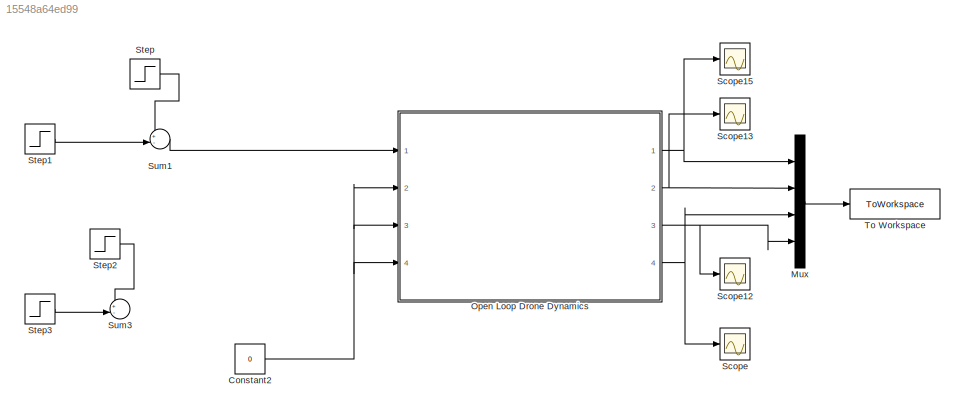
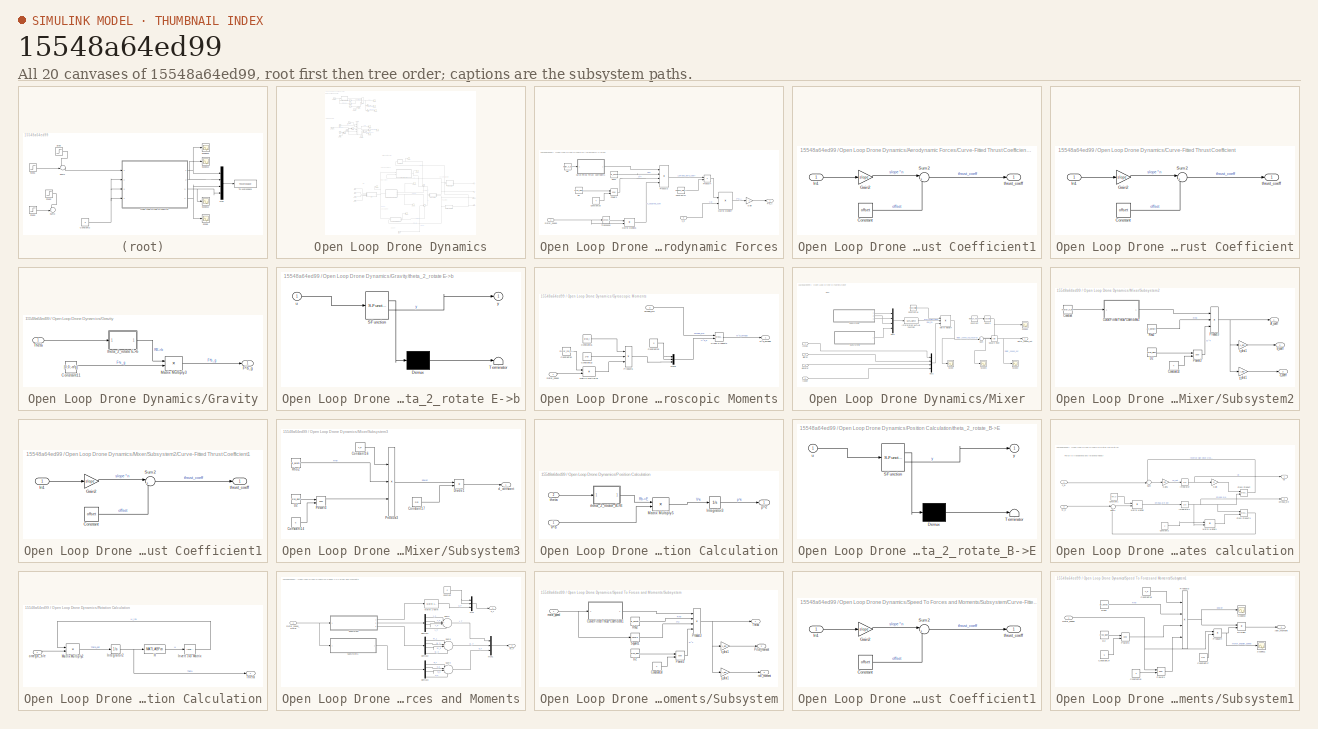
[diagram: thumbnail index - all 20 canvases of the model, root first then tree order]
MODEL slx_15548a64ed99
KIND model
CONFIG AbsTol = auto
CONFIG EnableMultiTasking = off
CONFIG FixedStep = auto
CONFIG MaxStep = auto
CONFIG MinStep = auto
CONFIG RelTol = 1e-3
CONFIG SampleTimeConstraint = Unconstrained
CONFIG SolverName = VariableStepAuto
CONFIG StartTime = 0.0
CONFIG StopTime = 10.0
BLOCK [Constant] Constant2
  Value = 0
BLOCK [Mux] Mux
  DisplayOption = bar
  Ports = [4, 1]
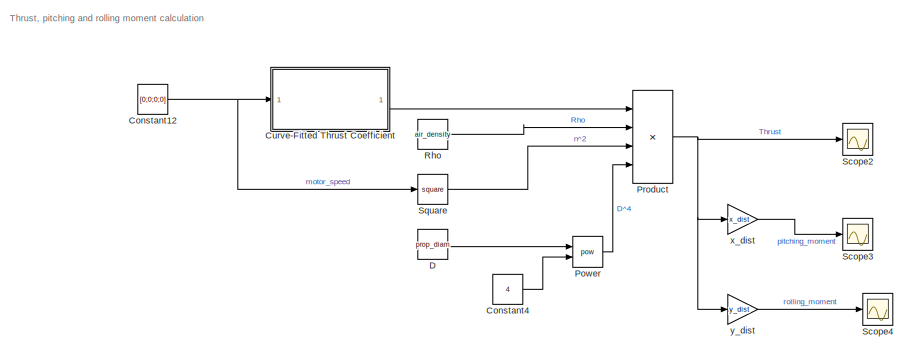
[diagram: Open Loop Drone Dynamics - part 1/6, top left region]
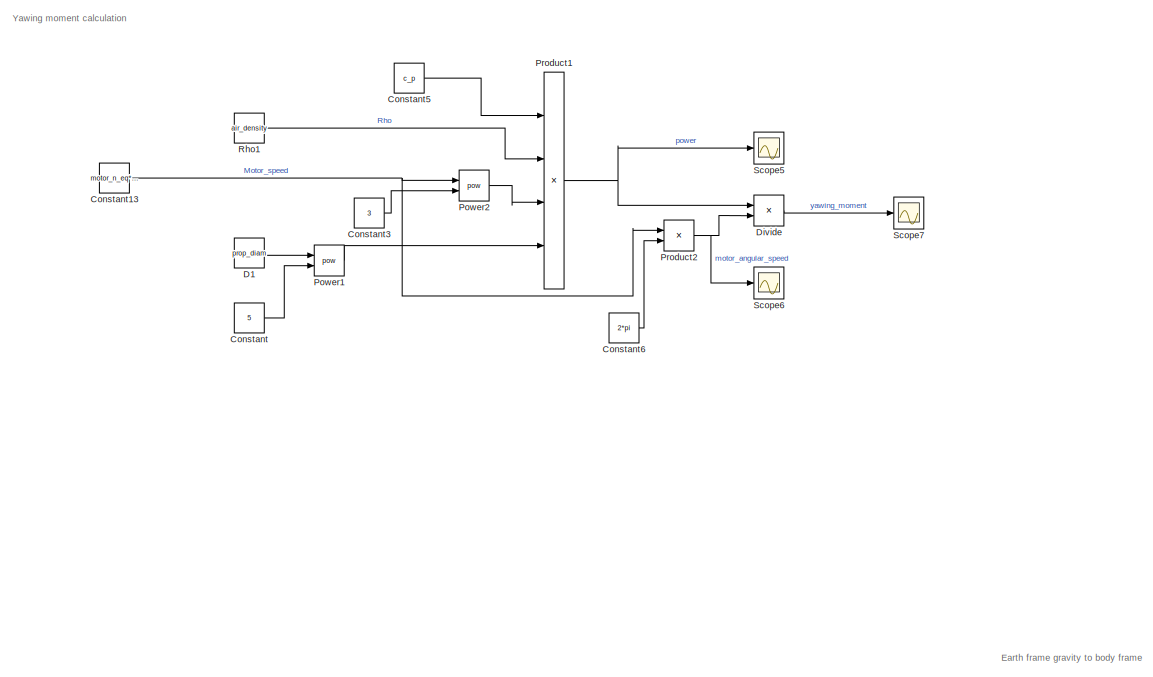
[diagram: Open Loop Drone Dynamics - part 2/6, top left region]
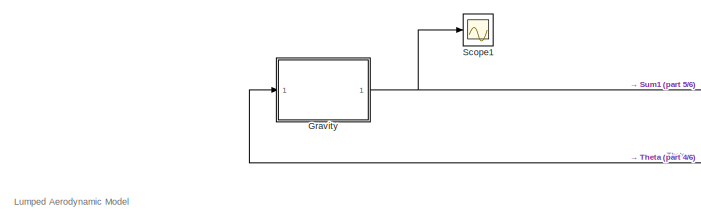
[diagram: Open Loop Drone Dynamics - part 3/6, central region]
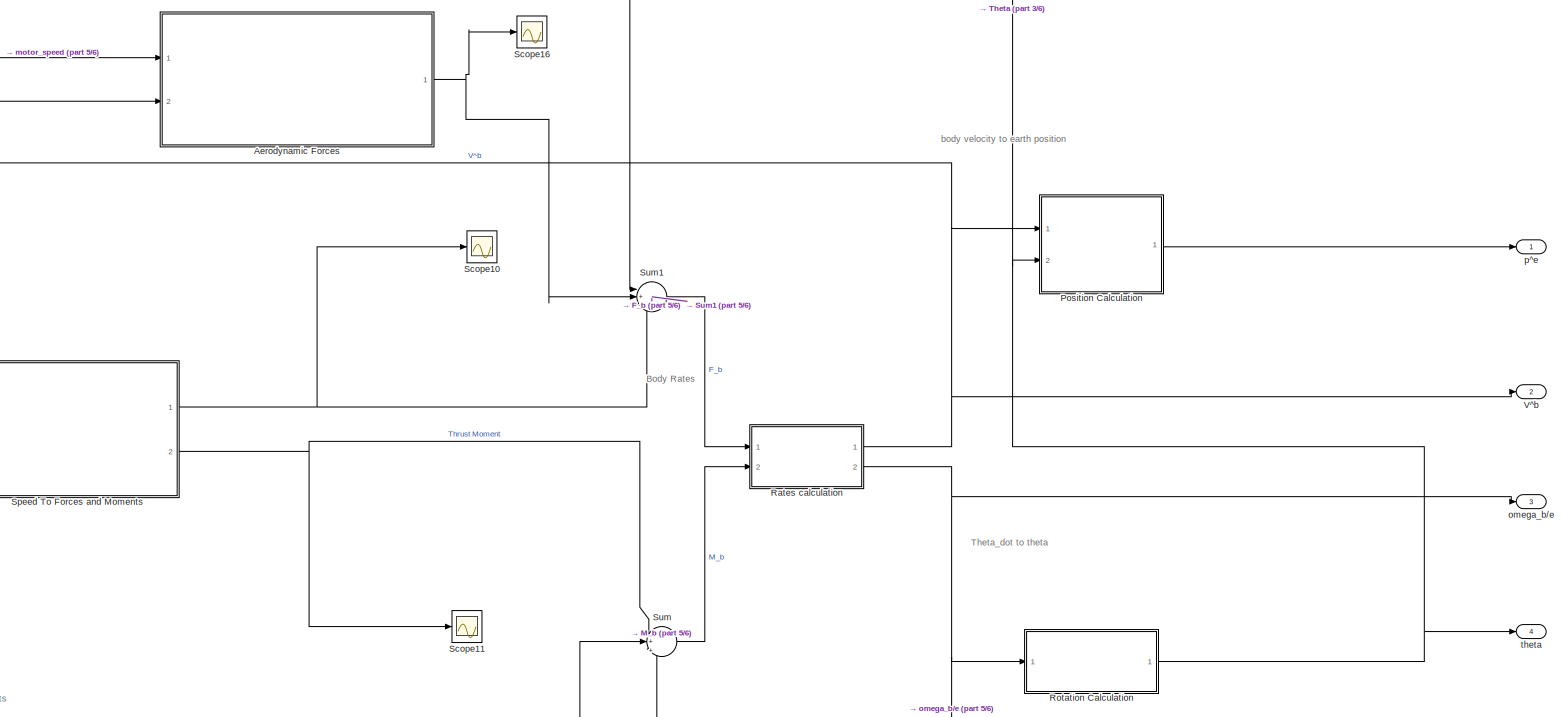
[diagram: Open Loop Drone Dynamics - part 4/6, bottom right region]
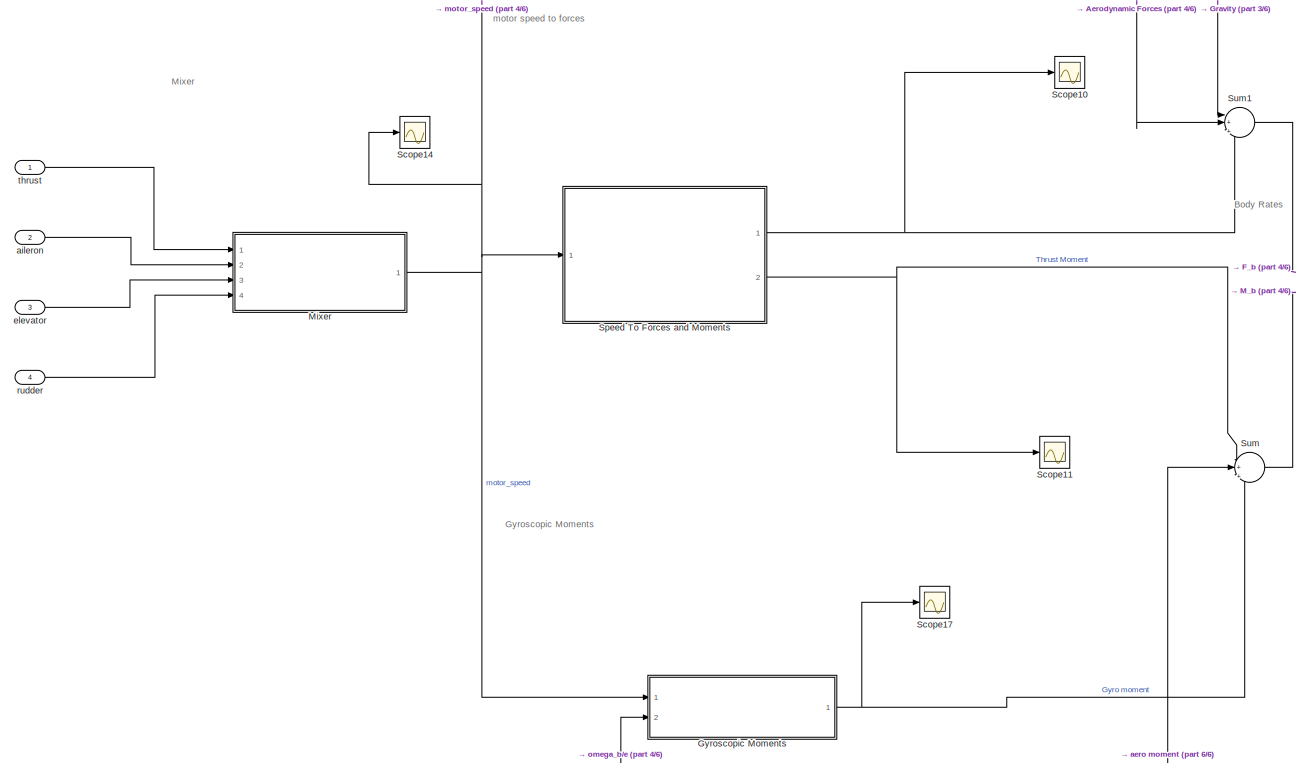
[diagram: Open Loop Drone Dynamics - part 5/6, bottom center region]
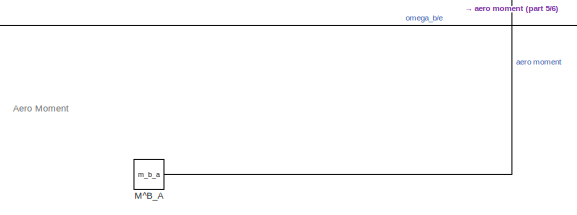
[diagram: Open Loop Drone Dynamics - part 6/6, bottom center region]
BLOCK [SubSystem] Open Loop Drone Dynamics
  Ports = [4, 4]
  RequestExecContextInheritance = off
BLOCK [SubSystem] Open Loop Drone Dynamics/Aerodynamic Forces
  Ports = [2, 1]
  RequestExecContextInheritance = off
BLOCK [Constant] Open Loop Drone Dynamics/Aerodynamic Forces/Constant26
  Value = 4
BLOCK [Constant] Open Loop Drone Dynamics/Aerodynamic Forces/Constant27
  Value = lumped_matrix
BLOCK [SubSystem] Open Loop Drone Dynamics/Aerodynamic Forces/Curve-Fitted Thrust Coefficient1
  Ports = [1, 1]
  RequestExecContextInheritance = off
BLOCK [Constant] Open Loop Drone Dynamics/Aerodynamic Forces/Curve-Fitted Thrust Coefficient1/Constant
  Value = offset
BLOCK [Gain] Open Loop Drone Dynamics/Aerodynamic Forces/Curve-Fitted Thrust Coefficient1/Gain2
  Gain = slope
BLOCK [Inport] Open Loop Drone Dynamics/Aerodynamic Forces/Curve-Fitted Thrust Coefficient1/In1
BLOCK [Sum] Open Loop Drone Dynamics/Aerodynamic Forces/Curve-Fitted Thrust Coefficient1/Sum2
  Inputs = |++
  Ports = [2, 1]
BLOCK [Outport] Open Loop Drone Dynamics/Aerodynamic Forces/Curve-Fitted Thrust Coefficient1/thrust_coeff
BLOCK [Constant] Open Loop Drone Dynamics/Aerodynamic Forces/D2
  Value = prop_diam
BLOCK [Constant] Open Loop Drone Dynamics/Aerodynamic Forces/D3
  Value = motor_n_eq
BLOCK [Outport] Open Loop Drone Dynamics/Aerodynamic Forces/F^b_A
BLOCK [Gain] Open Loop Drone Dynamics/Aerodynamic Forces/Gain
  Gain = -1
BLOCK [Product] Open Loop Drone Dynamics/Aerodynamic Forces/Matrix Multiply6
  Multiplication = Matrix(*)
  Ports = [2, 1]
BLOCK [Product] Open Loop Drone Dynamics/Aerodynamic Forces/Matrix Multiply7
  Multiplication = Matrix(*)
  Ports = [2, 1]
BLOCK [Math] Open Loop Drone Dynamics/Aerodynamic Forces/Power3
  Operator = pow
  Ports = [2, 1]
BLOCK [Product] Open Loop Drone Dynamics/Aerodynamic Forces/Product3
  Inputs = 4
  Ports = [4, 1]
BLOCK [Product] Open Loop Drone Dynamics/Aerodynamic Forces/Product4
  Ports = [2, 1]
BLOCK [Constant] Open Loop Drone Dynamics/Aerodynamic Forces/Rho2
  Value = air_density
BLOCK [Math] Open Loop Drone Dynamics/Aerodynamic Forces/Transpose
  Operator = transpose
  Ports = [1, 1]
BLOCK [Inport] Open Loop Drone Dynamics/Aerodynamic Forces/V_b
  Port = 2
BLOCK [Inport] Open Loop Drone Dynamics/Aerodynamic Forces/motor_speed
BLOCK [Constant] Open Loop Drone Dynamics/Constant
  Value = 5
BLOCK [Constant] Open Loop Drone Dynamics/Constant12
  Value = [0;0;0;0]
BLOCK [Constant] Open Loop Drone Dynamics/Constant13
  Value = motor_n_eq*ones(4,1)
BLOCK [Constant] Open Loop Drone Dynamics/Constant3
  Value = 3
BLOCK [Constant] Open Loop Drone Dynamics/Constant4
  Value = 4
BLOCK [Constant] Open Loop Drone Dynamics/Constant5
  Value = c_p
BLOCK [Constant] Open Loop Drone Dynamics/Constant6
  Value = 2*pi
BLOCK [SubSystem] Open Loop Drone Dynamics/Curve-Fitted Thrust Coefficient
  Ports = [1, 1]
  RequestExecContextInheritance = off
BLOCK [Constant] Open Loop Drone Dynamics/Curve-Fitted Thrust Coefficient/Constant
  Value = offset
BLOCK [Gain] Open Loop Drone Dynamics/Curve-Fitted Thrust Coefficient/Gain2
  Gain = slope
BLOCK [Inport] Open Loop Drone Dynamics/Curve-Fitted Thrust Coefficient/In1
BLOCK [Sum] Open Loop Drone Dynamics/Curve-Fitted Thrust Coefficient/Sum2
  Inputs = |++
  Ports = [2, 1]
BLOCK [Outport] Open Loop Drone Dynamics/Curve-Fitted Thrust Coefficient/thrust_coeff
BLOCK [Constant] Open Loop Drone Dynamics/D
  Value = prop_diam
BLOCK [Constant] Open Loop Drone Dynamics/D1
  Value = prop_diam
BLOCK [Product] Open Loop Drone Dynamics/Divide
  Inputs = */
  Ports = [2, 1]
BLOCK [SubSystem] Open Loop Drone Dynamics/Gravity
  Ports = [1, 1]
  RequestExecContextInheritance = off
BLOCK [Constant] Open Loop Drone Dynamics/Gravity/Constant11
  Value = [0;0;-m*g]
BLOCK [Outport] Open Loop Drone Dynamics/Gravity/F^b_g
BLOCK [Product] Open Loop Drone Dynamics/Gravity/Matrix Multiply3
  Multiplication = Matrix(*)
  Ports = [2, 1]
BLOCK [Inport] Open Loop Drone Dynamics/Gravity/Theta
BLOCK [SubSystem] Open Loop Drone Dynamics/Gravity/theta_2_rotate E->b
  ErrorFcn = Stateflow.Translate.translate
  PermitHierarchicalResolution = ExplicitOnly
  Ports = [1, 1]
  RequestExecContextInheritance = off
  SFBlockType = MATLAB Function
  TreatAsAtomicUnit = on
BLOCK [Demux] Open Loop Drone Dynamics/Gravity/theta_2_rotate E->b/ Demux 
  Outputs = 1
  Ports = [1, 1]
BLOCK [S-Function] Open Loop Drone Dynamics/Gravity/theta_2_rotate E->b/ SFunction 
  EnableBusSupport = on
  FunctionName = sf_sfun
  PortCounts = [1 2]
  Ports = [1, 2]
  SFcnIsStateOwnerBlock = off
  SFunctionDeploymentMode = off
  Tag = Stateflow S-Function 2
BLOCK [Terminator] Open Loop Drone Dynamics/Gravity/theta_2_rotate E->b/ Terminator 
BLOCK [Inport] Open Loop Drone Dynamics/Gravity/theta_2_rotate E->b/u
BLOCK [Outport] Open Loop Drone Dynamics/Gravity/theta_2_rotate E->b/y
BLOCK [SubSystem] Open Loop Drone Dynamics/Gyroscopic Moments
  Ports = [2, 1]
  RequestExecContextInheritance = off
BLOCK [Constant] Open Loop Drone Dynamics/Gyroscopic Moments/Constant30
  Value = motor_mix_vector
  VectorParams1D = off
BLOCK [Constant] Open Loop Drone Dynamics/Gyroscopic Moments/Constant31
  Value = prop_j
BLOCK [Constant] Open Loop Drone Dynamics/Gyroscopic Moments/Constant32
  Value = 2*pi
BLOCK [Constant] Open Loop Drone Dynamics/Gyroscopic Moments/Constant33
  Value = 0
BLOCK [Reference] Open Loop Drone Dynamics/Gyroscopic Moments/Cross Product2  REF=vrlib/Utilities/Cross Product
  Ports = [2, 1]
  SourceBlock = vrlib/Utilities/Cross Product
  SourceProductBaseCode = SL
  SourceType = Cross Product
BLOCK [Outport] Open Loop Drone Dynamics/Gyroscopic Moments/M^b_omega
BLOCK [Product] Open Loop Drone Dynamics/Gyroscopic Moments/Matrix Multiply8
  Multiplication = Matrix(*)
  Ports = [2, 1]
BLOCK [Mux] Open Loop Drone Dynamics/Gyroscopic Moments/Mux3
  DisplayOption = bar
  Inputs = 3
  Ports = [3, 1]
BLOCK [Product] Open Loop Drone Dynamics/Gyroscopic Moments/Product5
  Inputs = 3
  Ports = [3, 1]
BLOCK [Inport] Open Loop Drone Dynamics/Gyroscopic Moments/motor_speed
BLOCK [Inport] Open Loop Drone Dynamics/Gyroscopic Moments/omega_b//e
  Port = 2
BLOCK [Constant] Open Loop Drone Dynamics/M^B_A
  Value = m_b_a
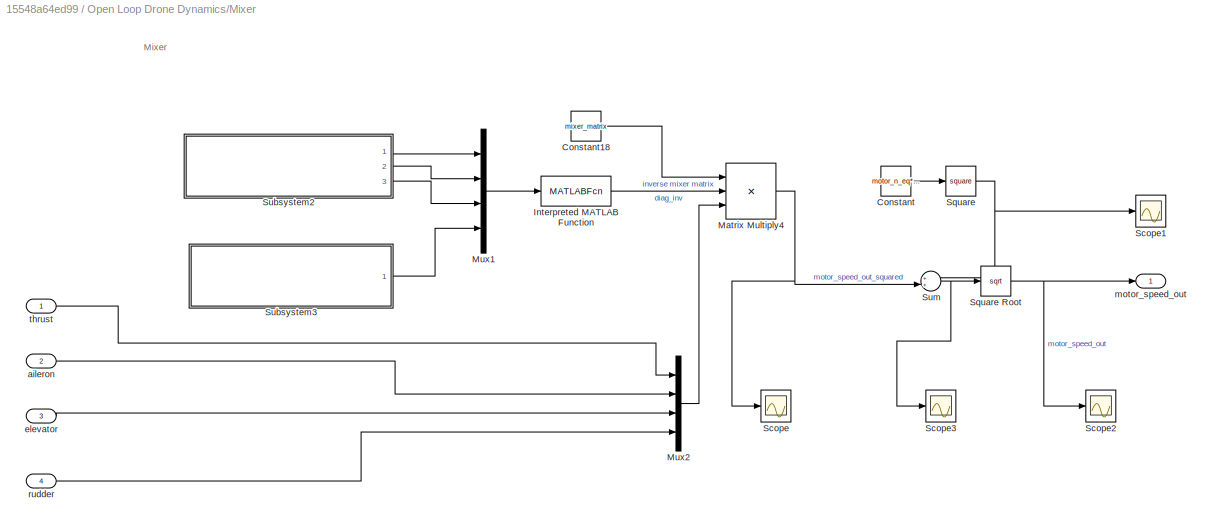
BLOCK [SubSystem] Open Loop Drone Dynamics/Mixer
  Ports = [4, 1]
  RequestExecContextInheritance = off
BLOCK [Constant] Open Loop Drone Dynamics/Mixer/Constant
  Value = motor_n_eq*ones(4,1)
BLOCK [Constant] Open Loop Drone Dynamics/Mixer/Constant18
  Value = mixer_matrix
BLOCK [MATLABFcn] Open Loop Drone Dynamics/Mixer/Interpreted MATLAB Function
  MATLABFcn = diag([1/u(1) 1/u(2) 1/u(3) 1/u(4)])
  Output1D = off
  OutputDimensions = [4 4]
  Ports = [1, 1]
BLOCK [Product] Open Loop Drone Dynamics/Mixer/Matrix Multiply4
  Inputs = 3
  Multiplication = Matrix(*)
  Ports = [3, 1]
BLOCK [Mux] Open Loop Drone Dynamics/Mixer/Mux1
  DisplayOption = bar
  Ports = [4, 1]
BLOCK [Mux] Open Loop Drone Dynamics/Mixer/Mux2
  DisplayOption = bar
  Ports = [4, 1]
BLOCK [Scope] Open Loop Drone Dynamics/Mixer/Scope
  Floating = off
  NumInputPorts = 1
  Ports = [1]
  ScopeSpecificationString = Simulink.scopes.TimeScopeBlockCfg('CurrentConfiguration', extmgr.ConfigurationSet(extmgr.Configuration('Core','General UI',true),extmgr.Configuration('Core','Source UI',true),extmgr.Configuration('Sources','WiredSimulink',true,'DataLoggingVariableName','ScopeData1'),extmgr.Configuration('Visuals','Time Domain',true,'SerializedDisplays',{struct('MinYLimReal','-160.45566','MaxYLimReal','1444.10095',...<+1604ch>
BLOCK [Scope] Open Loop Drone Dynamics/Mixer/Scope1
  Floating = off
  NumInputPorts = 1
  Ports = [1]
  ScopeSpecificationString = Simulink.scopes.TimeScopeBlockCfg('CurrentConfiguration', extmgr.ConfigurationSet(extmgr.Configuration('Core','General UI',true),extmgr.Configuration('Core','Source UI',true),extmgr.Configuration('Sources','WiredSimulink',true,'DataLoggingVariableName','ScopeData2'),extmgr.Configuration('Visuals','Time Domain',true,'SerializedDisplays',{struct('MinYLimReal','75542.12217','MaxYLimReal','95542.12217...<+1660ch>
BLOCK [Scope] Open Loop Drone Dynamics/Mixer/Scope2
  Floating = off
  NumInputPorts = 1
  Ports = [1]
  ScopeSpecificationString = Simulink.scopes.TimeScopeBlockCfg('CurrentConfiguration', extmgr.ConfigurationSet(extmgr.Configuration('Core','General UI',true),extmgr.Configuration('Core','Source UI',true),extmgr.Configuration('Sources','WiredSimulink',true,'DataLoggingVariableName','ScopeData3'),extmgr.Configuration('Visuals','Time Domain',true,'SerializedDisplays',{struct('MinYLimReal','292.20256','MaxYLimReal','294.93541','Y...<+1568ch>
BLOCK [Scope] Open Loop Drone Dynamics/Mixer/Scope3
  Floating = off
  NumInputPorts = 1
  Ports = [1]
  ScopeSpecificationString = Simulink.scopes.TimeScopeBlockCfg('CurrentConfiguration', extmgr.ConfigurationSet(extmgr.Configuration('Core','General UI',true),extmgr.Configuration('Core','Source UI',true),extmgr.Configuration('Sources','WiredSimulink',true,'DataLoggingVariableName','ScopeData4'),extmgr.Configuration('Visuals','Time Domain',true,'SerializedDisplays',{struct('MinYLimReal','85381.66651','MaxYLimReal','86986.22312...<+1536ch>
BLOCK [Math] Open Loop Drone Dynamics/Mixer/Square
  Operator = square
  Ports = [1, 1]
BLOCK [Sqrt] Open Loop Drone Dynamics/Mixer/Square Root
BLOCK [SubSystem] Open Loop Drone Dynamics/Mixer/Subsystem2
  Ports = [0, 3]
  RequestExecContextInheritance = off
BLOCK [Outport] Open Loop Drone Dynamics/Mixer/Subsystem2/A_coeff
BLOCK [Constant] Open Loop Drone Dynamics/Mixer/Subsystem2/Constant
  Value = motor_n_eq
BLOCK [Constant] Open Loop Drone Dynamics/Mixer/Subsystem2/Constant14
  Value = 4
BLOCK [SubSystem] Open Loop Drone Dynamics/Mixer/Subsystem2/Curve-Fitted Thrust Coefficient1
  Ports = [1, 1]
  RequestExecContextInheritance = off
BLOCK [Constant] Open Loop Drone Dynamics/Mixer/Subsystem2/Curve-Fitted Thrust Coefficient1/Constant
  Value = offset
BLOCK [Gain] Open Loop Drone Dynamics/Mixer/Subsystem2/Curve-Fitted Thrust Coefficient1/Gain2
  Gain = slope
BLOCK [Inport] Open Loop Drone Dynamics/Mixer/Subsystem2/Curve-Fitted Thrust Coefficient1/In1
BLOCK [Sum] Open Loop Drone Dynamics/Mixer/Subsystem2/Curve-Fitted Thrust Coefficient1/Sum2
  Inputs = |++
  Ports = [2, 1]
BLOCK [Outport] Open Loop Drone Dynamics/Mixer/Subsystem2/Curve-Fitted Thrust Coefficient1/thrust_coeff
BLOCK [Constant] Open Loop Drone Dynamics/Mixer/Subsystem2/D2
  Value = prop_diam
BLOCK [Math] Open Loop Drone Dynamics/Mixer/Subsystem2/Power3
  Operator = pow
  Ports = [2, 1]
BLOCK [Product] Open Loop Drone Dynamics/Mixer/Subsystem2/Product3
  Inputs = 3
  Ports = [3, 1]
BLOCK [Constant] Open Loop Drone Dynamics/Mixer/Subsystem2/Rho2
  Value = air_density
BLOCK [Outport] Open Loop Drone Dynamics/Mixer/Subsystem2/b_coeff
  Port = 2
BLOCK [Outport] Open Loop Drone Dynamics/Mixer/Subsystem2/c_coeff
  Port = 3
BLOCK [Gain] Open Loop Drone Dynamics/Mixer/Subsystem2/x_dist1
  Gain = x_dist
BLOCK [Gain] Open Loop Drone Dynamics/Mixer/Subsystem2/y_dist1
  Gain = y_dist
BLOCK [SubSystem] Open Loop Drone Dynamics/Mixer/Subsystem3
  Ports = [0, 1]
  RequestExecContextInheritance = off
BLOCK [Constant] Open Loop Drone Dynamics/Mixer/Subsystem3/Constant14
  Value = 5
BLOCK [Constant] Open Loop Drone Dynamics/Mixer/Subsystem3/Constant16
  Value = c_p
BLOCK [Constant] Open Loop Drone Dynamics/Mixer/Subsystem3/Constant17
  Value = 2*pi
BLOCK [Constant] Open Loop Drone Dynamics/Mixer/Subsystem3/D2
  Value = prop_diam
BLOCK [Product] Open Loop Drone Dynamics/Mixer/Subsystem3/Divide1
  Inputs = */
  Ports = [2, 1]
BLOCK [Math] Open Loop Drone Dynamics/Mixer/Subsystem3/Power3
  Operator = pow
  Ports = [2, 1]
BLOCK [Product] Open Loop Drone Dynamics/Mixer/Subsystem3/Product3
  Inputs = 3
  Ports = [3, 1]
BLOCK [Constant] Open Loop Drone Dynamics/Mixer/Subsystem3/Rho2
  Value = air_density
BLOCK [Outport] Open Loop Drone Dynamics/Mixer/Subsystem3/d_constant
BLOCK [Sum] Open Loop Drone Dynamics/Mixer/Sum
  Inputs = ++|
  Ports = [2, 1]
BLOCK [Inport] Open Loop Drone Dynamics/Mixer/aileron
  Port = 2
BLOCK [Inport] Open Loop Drone Dynamics/Mixer/elevator
  Port = 3
BLOCK [Outport] Open Loop Drone Dynamics/Mixer/motor_speed_out
BLOCK [Inport] Open Loop Drone Dynamics/Mixer/rudder
  Port = 4
BLOCK [Inport] Open Loop Drone Dynamics/Mixer/thrust
BLOCK [SubSystem] Open Loop Drone Dynamics/Position Calculation
  Ports = [2, 1]
  RequestExecContextInheritance = off
BLOCK [Integrator] Open Loop Drone Dynamics/Position Calculation/Integrator3
  Ports = [1, 1]
BLOCK [Product] Open Loop Drone Dynamics/Position Calculation/Matrix Multiply5
  Multiplication = Matrix(*)
  Ports = [2, 1]
BLOCK [Inport] Open Loop Drone Dynamics/Position Calculation/V^b
BLOCK [Outport] Open Loop Drone Dynamics/Position Calculation/p^e
BLOCK [Inport] Open Loop Drone Dynamics/Position Calculation/theta
  Port = 2
BLOCK [SubSystem] Open Loop Drone Dynamics/Position Calculation/theta_2_rotate_B->E
  ErrorFcn = Stateflow.Translate.translate
  PermitHierarchicalResolution = ExplicitOnly
  Ports = [1, 1]
  RequestExecContextInheritance = off
  SFBlockType = MATLAB Function
  TreatAsAtomicUnit = on
BLOCK [Demux] Open Loop Drone Dynamics/Position Calculation/theta_2_rotate_B->E/ Demux 
  Outputs = 1
  Ports = [1, 1]
BLOCK [S-Function] Open Loop Drone Dynamics/Position Calculation/theta_2_rotate_B->E/ SFunction 
  EnableBusSupport = on
  FunctionName = sf_sfun
  PortCounts = [1 2]
  Ports = [1, 2]
  SFcnIsStateOwnerBlock = off
  SFunctionDeploymentMode = off
  Tag = Stateflow S-Function 1
BLOCK [Terminator] Open Loop Drone Dynamics/Position Calculation/theta_2_rotate_B->E/ Terminator 
BLOCK [Inport] Open Loop Drone Dynamics/Position Calculation/theta_2_rotate_B->E/u
BLOCK [Outport] Open Loop Drone Dynamics/Position Calculation/theta_2_rotate_B->E/y
BLOCK [Math] Open Loop Drone Dynamics/Power
  Operator = pow
  Ports = [2, 1]
BLOCK [Math] Open Loop Drone Dynamics/Power1
  Operator = pow
  Ports = [2, 1]
BLOCK [Math] Open Loop Drone Dynamics/Power2
  Operator = pow
  Ports = [2, 1]
BLOCK [Product] Open Loop Drone Dynamics/Product
  Inputs = 4
  Ports = [4, 1]
BLOCK [Product] Open Loop Drone Dynamics/Product1
  Inputs = 4
  Ports = [4, 1]
BLOCK [Product] Open Loop Drone Dynamics/Product2
  Ports = [2, 1]
BLOCK [SubSystem] Open Loop Drone Dynamics/Rates calculation
  Ports = [2, 2]
  RequestExecContextInheritance = off
BLOCK [Constant] Open Loop Drone Dynamics/Rates calculation/Constant1
  Value = inv(J)
BLOCK [Constant] Open Loop Drone Dynamics/Rates calculation/Constant2
  Value = J
BLOCK [Reference] Open Loop Drone Dynamics/Rates calculation/Cross Product  REF=vrlib/Utilities/Cross Product
  Ports = [2, 1]
  SourceBlock = vrlib/Utilities/Cross Product
  SourceProductBaseCode = SL
  SourceType = Cross Product
BLOCK [Reference] Open Loop Drone Dynamics/Rates calculation/Cross Product1  REF=vrlib/Utilities/Cross Product
  Ports = [2, 1]
  SourceBlock = vrlib/Utilities/Cross Product
  SourceProductBaseCode = SL
  SourceType = Cross Product
BLOCK [Inport] Open Loop Drone Dynamics/Rates calculation/F_B
BLOCK [Gain] Open Loop Drone Dynamics/Rates calculation/Gain
  Gain = m
BLOCK [Gain] Open Loop Drone Dynamics/Rates calculation/Gain1
  Gain = 1/m
BLOCK [Integrator] Open Loop Drone Dynamics/Rates calculation/Integrator
  Ports = [1, 1]
BLOCK [Integrator] Open Loop Drone Dynamics/Rates calculation/Integrator1
  Ports = [1, 1]
BLOCK [Inport] Open Loop Drone Dynamics/Rates calculation/M_b
  Port = 2
BLOCK [Product] Open Loop Drone Dynamics/Rates calculation/Matrix Multiply
  Multiplication = Matrix(*)
  Ports = [2, 1]
BLOCK [Product] Open Loop Drone Dynamics/Rates calculation/Matrix Multiply1
  Multiplication = Matrix(*)
  Ports = [2, 1]
BLOCK [Sum] Open Loop Drone Dynamics/Rates calculation/Sum
  Inputs = ++|
  Ports = [2, 1]
BLOCK [Sum] Open Loop Drone Dynamics/Rates calculation/Sum1
  Inputs = |+-
  Ports = [2, 1]
BLOCK [Outport] Open Loop Drone Dynamics/Rates calculation/Vb
BLOCK [Outport] Open Loop Drone Dynamics/Rates calculation/omega_b//e
  Port = 2
BLOCK [Constant] Open Loop Drone Dynamics/Rho
  Value = air_density
BLOCK [Constant] Open Loop Drone Dynamics/Rho1
  Value = air_density
BLOCK [SubSystem] Open Loop Drone Dynamics/Rotation Calculation
  Ports = [1, 1]
  RequestExecContextInheritance = off
BLOCK [MATLABFcn] Open Loop Drone Dynamics/Rotation Calculation/H
  MATLABFcn = [1 0 -sin(u(2)); 0 cos(u(1)) sin(u(1))*cos(u(2)); 0 -sin(u(1)) cos(u(1))*cos(u(2))]
  Output1D = off
  OutputDimensions = [3 3]
  Ports = [1, 1]
BLOCK [Integrator] Open Loop Drone Dynamics/Rotation Calculation/Integrator2
  Ports = [1, 1]
BLOCK [Reference] Open Loop Drone Dynamics/Rotation Calculation/Invert 3x3 Matrix  REF=aerolibutil/Invert 
3x3 Matrix
  Ports = [1, 1]
  SourceBlock = aerolibutil/Invert \n3x3 Matrix
  SourceProductBaseCode = AE
  SourceType = Invert 3x3 Matrix
BLOCK [Product] Open Loop Drone Dynamics/Rotation Calculation/Matrix Multiply2
  Multiplication = Matrix(*)
  Ports = [2, 1]
BLOCK [Outport] Open Loop Drone Dynamics/Rotation Calculation/Theta
BLOCK [Inport] Open Loop Drone Dynamics/Rotation Calculation/omega_b//e
BLOCK [Scope] Open Loop Drone Dynamics/Scope1
  Floating = off
  NumInputPorts = 1
  Ports = [1]
  ScopeSpecificationString = Simulink.scopes.TimeScopeBlockCfg('CurrentConfiguration', extmgr.ConfigurationSet(extmgr.Configuration('Core','General UI',true),extmgr.Configuration('Core','Source UI',true),extmgr.Configuration('Sources','WiredSimulink',true,'DataLoggingVariableName','ScopeData1'),extmgr.Configuration('Visuals','Time Domain',true,'SerializedDisplays',{struct('MinYLimReal','-0.7497','MaxYLimReal','0.0833','YLabel...<+1481ch>
BLOCK [Scope] Open Loop Drone Dynamics/Scope10
  Floating = off
  NumInputPorts = 1
  Ports = [1]
  ScopeSpecificationString = Simulink.scopes.TimeScopeBlockCfg('CurrentConfiguration', extmgr.ConfigurationSet(extmgr.Configuration('Core','General UI',true),extmgr.Configuration('Core','Source UI',true),extmgr.Configuration('Sources','WiredSimulink',true,'DataLoggingVariableName','ScopeData12'),extmgr.Configuration('Visuals','Time Domain',true,'SerializedDisplays',{struct('MinYLimReal','-0.08465','MaxYLimReal','0.76185','YLa...<+1553ch>
BLOCK [Scope] Open Loop Drone Dynamics/Scope11
  Floating = off
  NumInputPorts = 1
  Ports = [1]
  ScopeSpecificationString = Simulink.scopes.TimeScopeBlockCfg('CurrentConfiguration', extmgr.ConfigurationSet(extmgr.Configuration('Core','General UI',true),extmgr.Configuration('Core','Source UI',true),extmgr.Configuration('Sources','WiredSimulink',true,'DataLoggingVariableName','ScopeData13'),extmgr.Configuration('Visuals','Time Domain',true,'SerializedDisplays',{struct('MinYLimReal','-1.00000','MaxYLimReal','1.00000','YLa...<+1505ch>
BLOCK [Scope] Open Loop Drone Dynamics/Scope14
  Floating = off
  NumInputPorts = 1
  Ports = [1]
  ScopeSpecificationString = Simulink.scopes.TimeScopeBlockCfg('CurrentConfiguration', extmgr.ConfigurationSet(extmgr.Configuration('Core','General UI',true),extmgr.Configuration('Core','Source UI',true),extmgr.Configuration('Sources','WiredSimulink',true,'DataLoggingVariableName','ScopeData10'),extmgr.Configuration('Visuals','Time Domain',true,'SerializedDisplays',{struct('MinYLimReal','292.20256','MaxYLimReal','294.93541','...<+1524ch>
BLOCK [Scope] Open Loop Drone Dynamics/Scope16
  Floating = off
  NumInputPorts = 1
  Ports = [1]
  ScopeSpecificationString = Simulink.scopes.TimeScopeBlockCfg('CurrentConfiguration', extmgr.ConfigurationSet(extmgr.Configuration('Core','General UI',true),extmgr.Configuration('Core','Source UI',true),extmgr.Configuration('Sources','WiredSimulink',true,'DataLoggingVariableName','ScopeData16'),extmgr.Configuration('Visuals','Time Domain',true,'SerializedDisplays',{struct('MinYLimReal','-1.00000','MaxYLimReal','1.00000','YLa...<+1455ch>
BLOCK [Scope] Open Loop Drone Dynamics/Scope17
  Floating = off
  NumInputPorts = 1
  Ports = [1]
  ScopeSpecificationString = Simulink.scopes.TimeScopeBlockCfg('CurrentConfiguration', extmgr.ConfigurationSet(extmgr.Configuration('Core','General UI',true),extmgr.Configuration('Core','Source UI',true),extmgr.Configuration('Sources','WiredSimulink',true,'DataLoggingVariableName','ScopeData17'),extmgr.Configuration('Visuals','Time Domain',true,'SerializedDisplays',{struct('MinYLimReal','-1.00000','MaxYLimReal','1.00000','YLa...<+1555ch>
BLOCK [Scope] Open Loop Drone Dynamics/Scope2
  Floating = off
  NumInputPorts = 1
  Ports = [1]
  ScopeSpecificationString = Simulink.scopes.TimeScopeBlockCfg('CurrentConfiguration', extmgr.ConfigurationSet(extmgr.Configuration('Core','General UI',true),extmgr.Configuration('Core','Source UI',true),extmgr.Configuration('Sources','WiredSimulink',true,'DataLoggingVariableName','ScopeData2'),extmgr.Configuration('Visuals','Time Domain',true,'SerializedDisplays',{struct('MinYLimReal','-1.00000','MaxYLimReal','1.00000','YLab...<+1570ch>
BLOCK [Scope] Open Loop Drone Dynamics/Scope3
  Floating = off
  NumInputPorts = 1
  Ports = [1]
  ScopeSpecificationString = Simulink.scopes.TimeScopeBlockCfg('CurrentConfiguration', extmgr.ConfigurationSet(extmgr.Configuration('Core','General UI',true),extmgr.Configuration('Core','Source UI',true),extmgr.Configuration('Sources','WiredSimulink',true,'DataLoggingVariableName','ScopeData3'),extmgr.Configuration('Visuals','Time Domain',true,'SerializedDisplays',{struct('MinYLimReal','-1.00000','MaxYLimReal','1.00000','YLab...<+1608ch>
BLOCK [Scope] Open Loop Drone Dynamics/Scope4
  Floating = off
  NumInputPorts = 1
  Ports = [1]
  ScopeSpecificationString = Simulink.scopes.TimeScopeBlockCfg('CurrentConfiguration', extmgr.ConfigurationSet(extmgr.Configuration('Core','General UI',true),extmgr.Configuration('Core','Source UI',true),extmgr.Configuration('Sources','WiredSimulink',true,'DataLoggingVariableName','ScopeData4'),extmgr.Configuration('Visuals','Time Domain',true,'SerializedDisplays',{struct('MinYLimReal','-1.00000','MaxYLimReal','1.00000','YLab...<+1604ch>
BLOCK [Scope] Open Loop Drone Dynamics/Scope5
  Floating = off
  NumInputPorts = 1
  Ports = [1]
  ScopeSpecificationString = Simulink.scopes.TimeScopeBlockCfg('CurrentConfiguration', extmgr.ConfigurationSet(extmgr.Configuration('Core','General UI',true),extmgr.Configuration('Core','Source UI',true),extmgr.Configuration('Sources','WiredSimulink',true,'DataLoggingVariableName','ScopeData5'),extmgr.Configuration('Visuals','Time Domain',true,'SerializedDisplays',{struct('MinYLimReal','0.57366','MaxYLimReal','2.57366','YLabe...<+1566ch>
BLOCK [Scope] Open Loop Drone Dynamics/Scope6
  Floating = off
  NumInputPorts = 1
  Ports = [1]
  ScopeSpecificationString = Simulink.scopes.TimeScopeBlockCfg('CurrentConfiguration', extmgr.ConfigurationSet(extmgr.Configuration('Core','General UI',true),extmgr.Configuration('Core','Source UI',true),extmgr.Configuration('Sources','WiredSimulink',true,'DataLoggingVariableName','ScopeData6'),extmgr.Configuration('Visuals','Time Domain',true,'SerializedDisplays',{struct('MinYLimReal','837.67996','MaxYLimReal','2837.67996','...<+1642ch>
BLOCK [Scope] Open Loop Drone Dynamics/Scope7
  Floating = off
  NumInputPorts = 1
  Ports = [1]
  ScopeSpecificationString = Simulink.scopes.TimeScopeBlockCfg('CurrentConfiguration', extmgr.ConfigurationSet(extmgr.Configuration('Core','General UI',true),extmgr.Configuration('Core','Source UI',true),extmgr.Configuration('Sources','WiredSimulink',true,'DataLoggingVariableName','ScopeData7'),extmgr.Configuration('Visuals','Time Domain',true,'SerializedDisplays',{struct('MinYLimReal','0.00076','MaxYLimReal','0.00096','YLabe...<+1660ch>
BLOCK [SubSystem] Open Loop Drone Dynamics/Speed To Forces and Moments
  Ports = [1, 2]
  RequestExecContextInheritance = off
BLOCK [Constant] Open Loop Drone Dynamics/Speed To Forces and Moments/Constant
  Value = 0
BLOCK [Demux] Open Loop Drone Dynamics/Speed To Forces and Moments/Demux1
  Ports = [1, 4]
BLOCK [Demux] Open Loop Drone Dynamics/Speed To Forces and Moments/Demux2
  Ports = [1, 4]
BLOCK [Demux] Open Loop Drone Dynamics/Speed To Forces and Moments/Demux3
  Ports = [1, 4]
BLOCK [Outport] Open Loop Drone Dynamics/Speed To Forces and Moments/F_T
BLOCK [Outport] Open Loop Drone Dynamics/Speed To Forces and Moments/M_T
  Port = 2
BLOCK [Reference] Open Loop Drone Dynamics/Speed To Forces and Moments/Matrix 1-Norm  REF=dspmtrx3/Matrix 
1-Norm
  Ports = [1, 1]
  SourceBlock = dspmtrx3/Matrix \n1-Norm
  SourceProductBaseCode = DS
  SourceType = Matrix 1-Norm
BLOCK [Mux] Open Loop Drone Dynamics/Speed To Forces and Moments/Mux
  DisplayOption = bar
  Inputs = 3
  Ports = [3, 1]
BLOCK [Mux] Open Loop Drone Dynamics/Speed To Forces and Moments/Mux1
  DisplayOption = bar
  Inputs = 3
  Ports = [3, 1]
BLOCK [SubSystem] Open Loop Drone Dynamics/Speed To Forces and Moments/Subsystem
  Ports = [1, 3]
  RequestExecContextInheritance = off
BLOCK [Constant] Open Loop Drone Dynamics/Speed To Forces and Moments/Subsystem/Constant14
  Value = 4
BLOCK [SubSystem] Open Loop Drone Dynamics/Speed To Forces and Moments/Subsystem/Curve-Fitted Thrust Coefficient1
  Ports = [1, 1]
  RequestExecContextInheritance = off
BLOCK [Constant] Open Loop Drone Dynamics/Speed To Forces and Moments/Subsystem/Curve-Fitted Thrust Coefficient1/Constant
  Value = offset
BLOCK [Gain] Open Loop Drone Dynamics/Speed To Forces and Moments/Subsystem/Curve-Fitted Thrust Coefficient1/Gain2
  Gain = slope
BLOCK [Inport] Open Loop Drone Dynamics/Speed To Forces and Moments/Subsystem/Curve-Fitted Thrust Coefficient1/In1
BLOCK [Sum] Open Loop Drone Dynamics/Speed To Forces and Moments/Subsystem/Curve-Fitted Thrust Coefficient1/Sum2
  Inputs = |++
  Ports = [2, 1]
BLOCK [Outport] Open Loop Drone Dynamics/Speed To Forces and Moments/Subsystem/Curve-Fitted Thrust Coefficient1/thrust_coeff
BLOCK [Constant] Open Loop Drone Dynamics/Speed To Forces and Moments/Subsystem/D2
  Value = prop_diam
BLOCK [Outport] Open Loop Drone Dynamics/Speed To Forces and Moments/Subsystem/Pitch_moment
  Port = 2
BLOCK [Math] Open Loop Drone Dynamics/Speed To Forces and Moments/Subsystem/Power3
  Operator = pow
  Ports = [2, 1]
BLOCK [Product] Open Loop Drone Dynamics/Speed To Forces and Moments/Subsystem/Product3
  Inputs = 4
  Ports = [4, 1]
BLOCK [Constant] Open Loop Drone Dynamics/Speed To Forces and Moments/Subsystem/Rho2
  Value = air_density
BLOCK [Math] Open Loop Drone Dynamics/Speed To Forces and Moments/Subsystem/Square1
  Operator = square
  Ports = [1, 1]
BLOCK [Outport] Open Loop Drone Dynamics/Speed To Forces and Moments/Subsystem/Thrust
BLOCK [Inport] Open Loop Drone Dynamics/Speed To Forces and Moments/Subsystem/motor_speed
BLOCK [Outport] Open Loop Drone Dynamics/Speed To Forces and Moments/Subsystem/roll_moment
  Port = 3
BLOCK [Gain] Open Loop Drone Dynamics/Speed To Forces and Moments/Subsystem/x_dist1
  Gain = x_dist
BLOCK [Gain] Open Loop Drone Dynamics/Speed To Forces and Moments/Subsystem/y_dist1
  Gain = y_dist
BLOCK [SubSystem] Open Loop Drone Dynamics/Speed To Forces and Moments/Subsystem1
  Ports = [1, 1]
  RequestExecContextInheritance = off
BLOCK [Constant] Open Loop Drone Dynamics/Speed To Forces and Moments/Subsystem1/Constant14
  Value = 5
BLOCK [Constant] Open Loop Drone Dynamics/Speed To Forces and Moments/Subsystem1/Constant15
  Value = 3
BLOCK [Constant] Open Loop Drone Dynamics/Speed To Forces and Moments/Subsystem1/Constant16
  Value = c_p
BLOCK [Constant] Open Loop Drone Dynamics/Speed To Forces and Moments/Subsystem1/Constant17
  Value = 2*pi
BLOCK [Constant] Open Loop Drone Dynamics/Speed To Forces and Moments/Subsystem1/D2
  Value = prop_diam
BLOCK [Product] Open Loop Drone Dynamics/Speed To Forces and Moments/Subsystem1/Divide1
  Inputs = */
  Ports = [2, 1]
BLOCK [Inport] Open Loop Drone Dynamics/Speed To Forces and Moments/Subsystem1/Motor_speed
BLOCK [Math] Open Loop Drone Dynamics/Speed To Forces and Moments/Subsystem1/Power3
  Operator = pow
  Ports = [2, 1]
BLOCK [Math] Open Loop Drone Dynamics/Speed To Forces and Moments/Subsystem1/Power4
  Operator = pow
  Ports = [2, 1]
BLOCK [Product] Open Loop Drone Dynamics/Speed To Forces and Moments/Subsystem1/Product3
  Inputs = 4
  Ports = [4, 1]
BLOCK [Product] Open Loop Drone Dynamics/Speed To Forces and Moments/Subsystem1/Product4
  Ports = [2, 1]
BLOCK [Constant] Open Loop Drone Dynamics/Speed To Forces and Moments/Subsystem1/Rho2
  Value = air_density
BLOCK [Scope] Open Loop Drone Dynamics/Speed To Forces and Moments/Subsystem1/Scope10
  Floating = off
  NumInputPorts = 1
  Ports = [1]
  ScopeSpecificationString = Simulink.scopes.TimeScopeBlockCfg('CurrentConfiguration', extmgr.ConfigurationSet(extmgr.Configuration('Core','General UI',true),extmgr.Configuration('Core','Source UI',true),extmgr.Configuration('Sources','WiredSimulink',true,'DataLoggingVariableName','ScopeData10'),extmgr.Configuration('Visuals','Time Domain',true,'SerializedDisplays',{struct('MinYLimReal','0.57366','MaxYLimReal','2.57366','YLab...<+1427ch>
BLOCK [Scope] Open Loop Drone Dynamics/Speed To Forces and Moments/Subsystem1/Scope11
  Floating = off
  NumInputPorts = 1
  Ports = [1]
  ScopeSpecificationString = Simulink.scopes.TimeScopeBlockCfg('CurrentConfiguration', extmgr.ConfigurationSet(extmgr.Configuration('Core','General UI',true),extmgr.Configuration('Core','Source UI',true),extmgr.Configuration('Sources','WiredSimulink',true,'DataLoggingVariableName','ScopeData11'),extmgr.Configuration('Visuals','Time Domain',true,'SerializedDisplays',{struct('MinYLimReal','837.67996','MaxYLimReal','2837.67996',...<+1643ch>
BLOCK [Outport] Open Loop Drone Dynamics/Speed To Forces and Moments/Subsystem1/yaw_moment
BLOCK [Sum] Open Loop Drone Dynamics/Speed To Forces and Moments/Sum2
  Inputs = |+|-|-|+
  Ports = [4, 1]
BLOCK [Sum] Open Loop Drone Dynamics/Speed To Forces and Moments/Sum3
  Inputs = |+|+|-|-
  Ports = [4, 1]
BLOCK [Sum] Open Loop Drone Dynamics/Speed To Forces and Moments/Sum4
  Inputs = |-|+|-|+
  Ports = [4, 1]
BLOCK [Inport] Open Loop Drone Dynamics/Speed To Forces and Moments/motor_speed_matrix
BLOCK [Math] Open Loop Drone Dynamics/Square
  Operator = square
  Ports = [1, 1]
BLOCK [Sum] Open Loop Drone Dynamics/Sum
  Inputs = |+|+|+
  Ports = [3, 1]
BLOCK [Sum] Open Loop Drone Dynamics/Sum1
  Inputs = |+|+|+
  Ports = [3, 1]
BLOCK [Outport] Open Loop Drone Dynamics/V^b
  Port = 2
BLOCK [Inport] Open Loop Drone Dynamics/aileron
  Port = 2
BLOCK [Inport] Open Loop Drone Dynamics/elevator
  Port = 3
BLOCK [Outport] Open Loop Drone Dynamics/omega_b//e
  Port = 3
BLOCK [Outport] Open Loop Drone Dynamics/p^e
BLOCK [Inport] Open Loop Drone Dynamics/rudder
  Port = 4
BLOCK [Outport] Open Loop Drone Dynamics/theta
  Port = 4
BLOCK [Inport] Open Loop Drone Dynamics/thrust
BLOCK [Gain] Open Loop Drone Dynamics/x_dist
  Gain = x_dist
BLOCK [Gain] Open Loop Drone Dynamics/y_dist
  Gain = y_dist
BLOCK [Scope] Scope
  Floating = off
  NumInputPorts = 1
  Ports = [1]
  ScopeSpecificationString = Simulink.scopes.TimeScopeBlockCfg('CurrentConfiguration', extmgr.ConfigurationSet(extmgr.Configuration('Core','General UI',true),extmgr.Configuration('Core','Source UI',true),extmgr.Configuration('Sources','WiredSimulink',true),extmgr.Configuration('Visuals','Time Domain',true,'SerializedDisplays',{struct('MinYLimReal','-1.00000','MaxYLimReal','1.00000','YLabelReal','','MinYLimMag','0.00000','MaxY...<+1448ch>
BLOCK [Scope] Scope12
  Floating = off
  NumInputPorts = 1
  Ports = [1]
  ScopeSpecificationString = Simulink.scopes.TimeScopeBlockCfg('CurrentConfiguration', extmgr.ConfigurationSet(extmgr.Configuration('Core','General UI',true),extmgr.Configuration('Core','Source UI',true),extmgr.Configuration('Sources','WiredSimulink',true,'DataLoggingVariableName','ScopeData14'),extmgr.Configuration('Visuals','Time Domain',true,'SerializedDisplays',{struct('MinYLimReal','-1.00000','MaxYLimReal','1.00000','YLa...<+1500ch>
BLOCK [Scope] Scope13
  Floating = off
  NumInputPorts = 1
  Ports = [1]
  ScopeSpecificationString = Simulink.scopes.TimeScopeBlockCfg('CurrentConfiguration', extmgr.ConfigurationSet(extmgr.Configuration('Core','General UI',true),extmgr.Configuration('Core','Source UI',true),extmgr.Configuration('Sources','WiredSimulink',true,'DataLoggingVariableName','ScopeData15'),extmgr.Configuration('Visuals','Time Domain',true,'SerializedDisplays',{struct('MinYLimReal','-0.00199','MaxYLimReal','0.01787','YLa...<+1483ch>
BLOCK [Scope] Scope15
  Floating = off
  NumInputPorts = 1
  Ports = [1]
  ScopeSpecificationString = Simulink.scopes.TimeScopeBlockCfg('CurrentConfiguration', extmgr.ConfigurationSet(extmgr.Configuration('Core','General UI',true),extmgr.Configuration('Core','Source UI',true),extmgr.Configuration('Sources','WiredSimulink',true,'DataLoggingVariableName','ScopeData11'),extmgr.Configuration('Visuals','Time Domain',true,'SerializedDisplays',{struct('MinYLimReal','-0.01955','MaxYLimReal','0.17597','YLa...<+1483ch>
BLOCK [Step] Step
  After = 0.01
  SampleTime = 0
  Time = 0.1
BLOCK [Step] Step1
  After = 0.01
  SampleTime = 0
  Time = 0.2
BLOCK [Step] Step2
  After = 0.003
  SampleTime = 0
  Time = 0.1
BLOCK [Step] Step3
  After = 0.003
  SampleTime = 0
  Time = 0.2
BLOCK [Sum] Sum1
  Inputs = +-|
  Ports = [2, 1]
BLOCK [Sum] Sum3
  Inputs = +-|
  Ports = [2, 1]
BLOCK [ToWorkspace] To Workspace
  FixptAsFi = on
  MaxDataPoints = inf
  Ports = [1]
  SampleTime = -1
  SaveFormat = Timeseries
  VariableName = simout
ANNOTATION Open Loop Drone Dynamics: Aero Moment
ANNOTATION Open Loop Drone Dynamics: Body Rates
ANNOTATION Open Loop Drone Dynamics: Earth frame gravity to body frame
ANNOTATION Open Loop Drone Dynamics: Gyroscopic Moments
ANNOTATION Open Loop Drone Dynamics: Lumped Aerodynamic Model
ANNOTATION Open Loop Drone Dynamics: Mixer
ANNOTATION Open Loop Drone Dynamics: Theta_dot to theta
ANNOTATION Open Loop Drone Dynamics: Thrust, pitching and rolling moment calculation
ANNOTATION Open Loop Drone Dynamics: Yawing moment calculation
ANNOTATION Open Loop Drone Dynamics: body velocity to earth position
ANNOTATION Open Loop Drone Dynamics: motor speed to forces
ANNOTATION Open Loop Drone Dynamics/Mixer: Mixer
ANNOTATION Open Loop Drone Dynamics/Rates calculation: Force to translational and rotational velocity
NET Constant2:1 -> Open Loop Drone Dynamics:2, Open Loop Drone Dynamics:3, Open Loop Drone Dynamics:4
LINE Mux:1 -> To Workspace:1
LINE Open Loop Drone Dynamics/Aerodynamic Forces/Constant26:1 -> Open Loop Drone Dynamics/Aerodynamic Forces/Power3:2
LINE Open Loop Drone Dynamics/Aerodynamic Forces/Constant27:1 -> Open Loop Drone Dynamics/Aerodynamic Forces/Product4:2
LINE Open Loop Drone Dynamics/Aerodynamic Forces/Curve-Fitted Thrust Coefficient1/Constant:1 -> Open Loop Drone Dynamics/Aerodynamic Forces/Curve-Fitted Thrust Coefficient1/Sum2:2
LINE Open Loop Drone Dynamics/Aerodynamic Forces/Curve-Fitted Thrust Coefficient1/Gain2:1 -> Open Loop Drone Dynamics/Aerodynamic Forces/Curve-Fitted Thrust Coefficient1/Sum2:1
LINE Open Loop Drone Dynamics/Aerodynamic Forces/Curve-Fitted Thrust Coefficient1/In1:1 -> Open Loop Drone Dynamics/Aerodynamic Forces/Curve-Fitted Thrust Coefficient1/Gain2:1
LINE Open Loop Drone Dynamics/Aerodynamic Forces/Curve-Fitted Thrust Coefficient1/Sum2:1 -> Open Loop Drone Dynamics/Aerodynamic Forces/Curve-Fitted Thrust Coefficient1/thrust_coeff:1
LINE Open Loop Drone Dynamics/Aerodynamic Forces/Curve-Fitted Thrust Coefficient1:1 -> Open Loop Drone Dynamics/Aerodynamic Forces/Product3:1
LINE Open Loop Drone Dynamics/Aerodynamic Forces/D2:1 -> Open Loop Drone Dynamics/Aerodynamic Forces/Power3:1
LINE Open Loop Drone Dynamics/Aerodynamic Forces/D3:1 -> Open Loop Drone Dynamics/Aerodynamic Forces/Curve-Fitted Thrust Coefficient1:1
LINE Open Loop Drone Dynamics/Aerodynamic Forces/Gain:1 -> Open Loop Drone Dynamics/Aerodynamic Forces/F^b_A:1
LINE Open Loop Drone Dynamics/Aerodynamic Forces/Matrix Multiply6:1 -> Open Loop Drone Dynamics/Aerodynamic Forces/Product3:4
LINE Open Loop Drone Dynamics/Aerodynamic Forces/Matrix Multiply7:1 -> Open Loop Drone Dynamics/Aerodynamic Forces/Gain:1
LINE Open Loop Drone Dynamics/Aerodynamic Forces/Power3:1 -> Open Loop Drone Dynamics/Aerodynamic Forces/Product3:3
LINE Open Loop Drone Dynamics/Aerodynamic Forces/Product3:1 -> Open Loop Drone Dynamics/Aerodynamic Forces/Product4:1
LINE Open Loop Drone Dynamics/Aerodynamic Forces/Product4:1 -> Open Loop Drone Dynamics/Aerodynamic Forces/Matrix Multiply7:1
LINE Open Loop Drone Dynamics/Aerodynamic Forces/Rho2:1 -> Open Loop Drone Dynamics/Aerodynamic Forces/Product3:2
LINE Open Loop Drone Dynamics/Aerodynamic Forces/Transpose:1 -> Open Loop Drone Dynamics/Aerodynamic Forces/Matrix Multiply6:1
LINE Open Loop Drone Dynamics/Aerodynamic Forces/V_b:1 -> Open Loop Drone Dynamics/Aerodynamic Forces/Matrix Multiply7:2
NET Open Loop Drone Dynamics/Aerodynamic Forces/motor_speed:1 -> Open Loop Drone Dynamics/Aerodynamic Forces/Matrix Multiply6:2, Open Loop Drone Dynamics/Aerodynamic Forces/Transpose:1
NET Open Loop Drone Dynamics/Aerodynamic Forces:1 -> Open Loop Drone Dynamics/Scope16:1, Open Loop Drone Dynamics/Sum1:2
NET Open Loop Drone Dynamics/Constant12:1 -> Open Loop Drone Dynamics/Curve-Fitted Thrust Coefficient:1, Open Loop Drone Dynamics/Square:1
NET Open Loop Drone Dynamics/Constant13:1 -> Open Loop Drone Dynamics/Power2:1, Open Loop Drone Dynamics/Product2:1
LINE Open Loop Drone Dynamics/Constant3:1 -> Open Loop Drone Dynamics/Power2:2
LINE Open Loop Drone Dynamics/Constant4:1 -> Open Loop Drone Dynamics/Power:2
LINE Open Loop Drone Dynamics/Constant5:1 -> Open Loop Drone Dynamics/Product1:1
LINE Open Loop Drone Dynamics/Constant6:1 -> Open Loop Drone Dynamics/Product2:2
LINE Open Loop Drone Dynamics/Constant:1 -> Open Loop Drone Dynamics/Power1:2
LINE Open Loop Drone Dynamics/Curve-Fitted Thrust Coefficient/Constant:1 -> Open Loop Drone Dynamics/Curve-Fitted Thrust Coefficient/Sum2:2
LINE Open Loop Drone Dynamics/Curve-Fitted Thrust Coefficient/Gain2:1 -> Open Loop Drone Dynamics/Curve-Fitted Thrust Coefficient/Sum2:1
LINE Open Loop Drone Dynamics/Curve-Fitted Thrust Coefficient/In1:1 -> Open Loop Drone Dynamics/Curve-Fitted Thrust Coefficient/Gain2:1
LINE Open Loop Drone Dynamics/Curve-Fitted Thrust Coefficient/Sum2:1 -> Open Loop Drone Dynamics/Curve-Fitted Thrust Coefficient/thrust_coeff:1
LINE Open Loop Drone Dynamics/Curve-Fitted Thrust Coefficient:1 -> Open Loop Drone Dynamics/Product:1
LINE Open Loop Drone Dynamics/D1:1 -> Open Loop Drone Dynamics/Power1:1
LINE Open Loop Drone Dynamics/D:1 -> Open Loop Drone Dynamics/Power:1
LINE Open Loop Drone Dynamics/Divide:1 -> Open Loop Drone Dynamics/Scope7:1
LINE Open Loop Drone Dynamics/Gravity/Constant11:1 -> Open Loop Drone Dynamics/Gravity/Matrix Multiply3:2
LINE Open Loop Drone Dynamics/Gravity/Matrix Multiply3:1 -> Open Loop Drone Dynamics/Gravity/F^b_g:1
LINE Open Loop Drone Dynamics/Gravity/Theta:1 -> Open Loop Drone Dynamics/Gravity/theta_2_rotate E->b:1
LINE Open Loop Drone Dynamics/Gravity/theta_2_rotate E->b:1 -> Open Loop Drone Dynamics/Gravity/Matrix Multiply3:1
NET Open Loop Drone Dynamics/Gravity:1 -> Open Loop Drone Dynamics/Scope1:1, Open Loop Drone Dynamics/Sum1:1
LINE Open Loop Drone Dynamics/Gyroscopic Moments/Constant30:1 -> Open Loop Drone Dynamics/Gyroscopic Moments/Matrix Multiply8:1
LINE Open Loop Drone Dynamics/Gyroscopic Moments/Constant31:1 -> Open Loop Drone Dynamics/Gyroscopic Moments/Product5:1
LINE Open Loop Drone Dynamics/Gyroscopic Moments/Constant32:1 -> Open Loop Drone Dynamics/Gyroscopic Moments/Product5:2
NET Open Loop Drone Dynamics/Gyroscopic Moments/Constant33:1 -> Open Loop Drone Dynamics/Gyroscopic Moments/Mux3:1, Open Loop Drone Dynamics/Gyroscopic Moments/Mux3:2
LINE Open Loop Drone Dynamics/Gyroscopic Moments/Cross Product2:1 -> Open Loop Drone Dynamics/Gyroscopic Moments/M^b_omega:1
LINE Open Loop Drone Dynamics/Gyroscopic Moments/Matrix Multiply8:1 -> Open Loop Drone Dynamics/Gyroscopic Moments/Product5:3
LINE Open Loop Drone Dynamics/Gyroscopic Moments/Mux3:1 -> Open Loop Drone Dynamics/Gyroscopic Moments/Cross Product2:2
LINE Open Loop Drone Dynamics/Gyroscopic Moments/Product5:1 -> Open Loop Drone Dynamics/Gyroscopic Moments/Mux3:3
LINE Open Loop Drone Dynamics/Gyroscopic Moments/motor_speed:1 -> Open Loop Drone Dynamics/Gyroscopic Moments/Matrix Multiply8:2
LINE Open Loop Drone Dynamics/Gyroscopic Moments/omega_b//e:1 -> Open Loop Drone Dynamics/Gyroscopic Moments/Cross Product2:1
NET Open Loop Drone Dynamics/Gyroscopic Moments:1 -> Open Loop Drone Dynamics/Scope17:1, Open Loop Drone Dynamics/Sum:3
LINE Open Loop Drone Dynamics/M^B_A:1 -> Open Loop Drone Dynamics/Sum:2
LINE Open Loop Drone Dynamics/Mixer/Constant18:1 -> Open Loop Drone Dynamics/Mixer/Matrix Multiply4:1
LINE Open Loop Drone Dynamics/Mixer/Constant:1 -> Open Loop Drone Dynamics/Mixer/Square:1
LINE Open Loop Drone Dynamics/Mixer/Interpreted MATLAB Function:1 -> Open Loop Drone Dynamics/Mixer/Matrix Multiply4:2
NET Open Loop Drone Dynamics/Mixer/Matrix Multiply4:1 -> Open Loop Drone Dynamics/Mixer/Scope:1, Open Loop Drone Dynamics/Mixer/Sum:2
LINE Open Loop Drone Dynamics/Mixer/Mux1:1 -> Open Loop Drone Dynamics/Mixer/Interpreted MATLAB Function:1
LINE Open Loop Drone Dynamics/Mixer/Mux2:1 -> Open Loop Drone Dynamics/Mixer/Matrix Multiply4:3
NET Open Loop Drone Dynamics/Mixer/Square Root:1 -> Open Loop Drone Dynamics/Mixer/Scope2:1, Open Loop Drone Dynamics/Mixer/motor_speed_out:1
NET Open Loop Drone Dynamics/Mixer/Square:1 -> Open Loop Drone Dynamics/Mixer/Scope1:1, Open Loop Drone Dynamics/Mixer/Sum:1
LINE Open Loop Drone Dynamics/Mixer/Subsystem2/Constant14:1 -> Open Loop Drone Dynamics/Mixer/Subsystem2/Power3:2
LINE Open Loop Drone Dynamics/Mixer/Subsystem2/Constant:1 -> Open Loop Drone Dynamics/Mixer/Subsystem2/Curve-Fitted Thrust Coefficient1:1
LINE Open Loop Drone Dynamics/Mixer/Subsystem2/Curve-Fitted Thrust Coefficient1/Constant:1 -> Open Loop Drone Dynamics/Mixer/Subsystem2/Curve-Fitted Thrust Coefficient1/Sum2:2
LINE Open Loop Drone Dynamics/Mixer/Subsystem2/Curve-Fitted Thrust Coefficient1/Gain2:1 -> Open Loop Drone Dynamics/Mixer/Subsystem2/Curve-Fitted Thrust Coefficient1/Sum2:1
LINE Open Loop Drone Dynamics/Mixer/Subsystem2/Curve-Fitted Thrust Coefficient1/In1:1 -> Open Loop Drone Dynamics/Mixer/Subsystem2/Curve-Fitted Thrust Coefficient1/Gain2:1
LINE Open Loop Drone Dynamics/Mixer/Subsystem2/Curve-Fitted Thrust Coefficient1/Sum2:1 -> Open Loop Drone Dynamics/Mixer/Subsystem2/Curve-Fitted Thrust Coefficient1/thrust_coeff:1
LINE Open Loop Drone Dynamics/Mixer/Subsystem2/Curve-Fitted Thrust Coefficient1:1 -> Open Loop Drone Dynamics/Mixer/Subsystem2/Product3:1
LINE Open Loop Drone Dynamics/Mixer/Subsystem2/D2:1 -> Open Loop Drone Dynamics/Mixer/Subsystem2/Power3:1
LINE Open Loop Drone Dynamics/Mixer/Subsystem2/Power3:1 -> Open Loop Drone Dynamics/Mixer/Subsystem2/Product3:3
NET Open Loop Drone Dynamics/Mixer/Subsystem2/Product3:1 -> Open Loop Drone Dynamics/Mixer/Subsystem2/A_coeff:1, Open Loop Drone Dynamics/Mixer/Subsystem2/x_dist1:1, Open Loop Drone Dynamics/Mixer/Subsystem2/y_dist1:1
LINE Open Loop Drone Dynamics/Mixer/Subsystem2/Rho2:1 -> Open Loop Drone Dynamics/Mixer/Subsystem2/Product3:2
LINE Open Loop Drone Dynamics/Mixer/Subsystem2/x_dist1:1 -> Open Loop Drone Dynamics/Mixer/Subsystem2/b_coeff:1
LINE Open Loop Drone Dynamics/Mixer/Subsystem2/y_dist1:1 -> Open Loop Drone Dynamics/Mixer/Subsystem2/c_coeff:1
LINE Open Loop Drone Dynamics/Mixer/Subsystem2:1 -> Open Loop Drone Dynamics/Mixer/Mux1:1
LINE Open Loop Drone Dynamics/Mixer/Subsystem2:2 -> Open Loop Drone Dynamics/Mixer/Mux1:2
LINE Open Loop Drone Dynamics/Mixer/Subsystem2:3 -> Open Loop Drone Dynamics/Mixer/Mux1:3
LINE Open Loop Drone Dynamics/Mixer/Subsystem3/Constant14:1 -> Open Loop Drone Dynamics/Mixer/Subsystem3/Power3:2
LINE Open Loop Drone Dynamics/Mixer/Subsystem3/Constant16:1 -> Open Loop Drone Dynamics/Mixer/Subsystem3/Product3:1
LINE Open Loop Drone Dynamics/Mixer/Subsystem3/Constant17:1 -> Open Loop Drone Dynamics/Mixer/Subsystem3/Divide1:2
LINE Open Loop Drone Dynamics/Mixer/Subsystem3/D2:1 -> Open Loop Drone Dynamics/Mixer/Subsystem3/Power3:1
LINE Open Loop Drone Dynamics/Mixer/Subsystem3/Divide1:1 -> Open Loop Drone Dynamics/Mixer/Subsystem3/d_constant:1
LINE Open Loop Drone Dynamics/Mixer/Subsystem3/Power3:1 -> Open Loop Drone Dynamics/Mixer/Subsystem3/Product3:3
LINE Open Loop Drone Dynamics/Mixer/Subsystem3/Product3:1 -> Open Loop Drone Dynamics/Mixer/Subsystem3/Divide1:1
LINE Open Loop Drone Dynamics/Mixer/Subsystem3/Rho2:1 -> Open Loop Drone Dynamics/Mixer/Subsystem3/Product3:2
LINE Open Loop Drone Dynamics/Mixer/Subsystem3:1 -> Open Loop Drone Dynamics/Mixer/Mux1:4
NET Open Loop Drone Dynamics/Mixer/Sum:1 -> Open Loop Drone Dynamics/Mixer/Scope3:1, Open Loop Drone Dynamics/Mixer/Square Root:1
LINE Open Loop Drone Dynamics/Mixer/aileron:1 -> Open Loop Drone Dynamics/Mixer/Mux2:2
LINE Open Loop Drone Dynamics/Mixer/elevator:1 -> Open Loop Drone Dynamics/Mixer/Mux2:3
LINE Open Loop Drone Dynamics/Mixer/rudder:1 -> Open Loop Drone Dynamics/Mixer/Mux2:4
LINE Open Loop Drone Dynamics/Mixer/thrust:1 -> Open Loop Drone Dynamics/Mixer/Mux2:1
NET Open Loop Drone Dynamics/Mixer:1 -> Open Loop Drone Dynamics/Aerodynamic Forces:1, Open Loop Drone Dynamics/Gyroscopic Moments:1, Open Loop Drone Dynamics/Scope14:1, Open Loop Drone Dynamics/Speed To Forces and Moments:1
LINE Open Loop Drone Dynamics/Position Calculation/Integrator3:1 -> Open Loop Drone Dynamics/Position Calculation/p^e:1
LINE Open Loop Drone Dynamics/Position Calculation/Matrix Multiply5:1 -> Open Loop Drone Dynamics/Position Calculation/Integrator3:1
LINE Open Loop Drone Dynamics/Position Calculation/V^b:1 -> Open Loop Drone Dynamics/Position Calculation/Matrix Multiply5:2
LINE Open Loop Drone Dynamics/Position Calculation/theta:1 -> Open Loop Drone Dynamics/Position Calculation/theta_2_rotate_B->E:1
LINE Open Loop Drone Dynamics/Position Calculation/theta_2_rotate_B->E:1 -> Open Loop Drone Dynamics/Position Calculation/Matrix Multiply5:1
LINE Open Loop Drone Dynamics/Position Calculation:1 -> Open Loop Drone Dynamics/p^e:1
LINE Open Loop Drone Dynamics/Power1:1 -> Open Loop Drone Dynamics/Product1:4
LINE Open Loop Drone Dynamics/Power2:1 -> Open Loop Drone Dynamics/Product1:3
LINE Open Loop Drone Dynamics/Power:1 -> Open Loop Drone Dynamics/Product:4
NET Open Loop Drone Dynamics/Product1:1 -> Open Loop Drone Dynamics/Divide:1, Open Loop Drone Dynamics/Scope5:1
NET Open Loop Drone Dynamics/Product2:1 -> Open Loop Drone Dynamics/Divide:2, Open Loop Drone Dynamics/Scope6:1
NET Open Loop Drone Dynamics/Product:1 -> Open Loop Drone Dynamics/Scope2:1, Open Loop Drone Dynamics/x_dist:1, Open Loop Drone Dynamics/y_dist:1
LINE Open Loop Drone Dynamics/Rates calculation/Constant1:1 -> Open Loop Drone Dynamics/Rates calculation/Matrix Multiply:1
LINE Open Loop Drone Dynamics/Rates calculation/Constant2:1 -> Open Loop Drone Dynamics/Rates calculation/Matrix Multiply1:1
LINE Open Loop Drone Dynamics/Rates calculation/Cross Product1:1 -> Open Loop Drone Dynamics/Rates calculation/Sum1:2
LINE Open Loop Drone Dynamics/Rates calculation/Cross Product:1 -> Open Loop Drone Dynamics/Rates calculation/Sum:1
LINE Open Loop Drone Dynamics/Rates calculation/F_B:1 -> Open Loop Drone Dynamics/Rates calculation/Sum:2
LINE Open Loop Drone Dynamics/Rates calculation/Gain1:1 -> Open Loop Drone Dynamics/Rates calculation/Integrator:1
LINE Open Loop Drone Dynamics/Rates calculation/Gain:1 -> Open Loop Drone Dynamics/Rates calculation/Cross Product:1
NET Open Loop Drone Dynamics/Rates calculation/Integrator1:1 -> Open Loop Drone Dynamics/Rates calculation/Cross Product1:1, Open Loop Drone Dynamics/Rates calculation/Cross Product:2, Open Loop Drone Dynamics/Rates calculation/Matrix Multiply1:2, Open Loop Drone Dynamics/Rates calculation/omega_b//e:1
NET Open Loop Drone Dynamics/Rates calculation/Integrator:1 -> Open Loop Drone Dynamics/Rates calculation/Gain:1, Open Loop Drone Dynamics/Rates calculation/Vb:1
LINE Open Loop Drone Dynamics/Rates calculation/M_b:1 -> Open Loop Drone Dynamics/Rates calculation/Sum1:1
LINE Open Loop Drone Dynamics/Rates calculation/Matrix Multiply1:1 -> Open Loop Drone Dynamics/Rates calculation/Cross Product1:2
LINE Open Loop Drone Dynamics/Rates calculation/Matrix Multiply:1 -> Open Loop Drone Dynamics/Rates calculation/Integrator1:1
LINE Open Loop Drone Dynamics/Rates calculation/Sum1:1 -> Open Loop Drone Dynamics/Rates calculation/Matrix Multiply:2
LINE Open Loop Drone Dynamics/Rates calculation/Sum:1 -> Open Loop Drone Dynamics/Rates calculation/Gain1:1
NET Open Loop Drone Dynamics/Rates calculation:1 -> Open Loop Drone Dynamics/Aerodynamic Forces:2, Open Loop Drone Dynamics/Position Calculation:1, Open Loop Drone Dynamics/V^b:1
NET Open Loop Drone Dynamics/Rates calculation:2 -> Open Loop Drone Dynamics/Gyroscopic Moments:2, Open Loop Drone Dynamics/Rotation Calculation:1, Open Loop Drone Dynamics/omega_b//e:1
LINE Open Loop Drone Dynamics/Rho1:1 -> Open Loop Drone Dynamics/Product1:2
LINE Open Loop Drone Dynamics/Rho:1 -> Open Loop Drone Dynamics/Product:2
LINE Open Loop Drone Dynamics/Rotation Calculation/H:1 -> Open Loop Drone Dynamics/Rotation Calculation/Invert 3x3 Matrix:1
NET Open Loop Drone Dynamics/Rotation Calculation/Integrator2:1 -> Open Loop Drone Dynamics/Rotation Calculation/H:1, Open Loop Drone Dynamics/Rotation Calculation/Theta:1
LINE Open Loop Drone Dynamics/Rotation Calculation/Invert 3x3 Matrix:1 -> Open Loop Drone Dynamics/Rotation Calculation/Matrix Multiply2:1
LINE Open Loop Drone Dynamics/Rotation Calculation/Matrix Multiply2:1 -> Open Loop Drone Dynamics/Rotation Calculation/Integrator2:1
LINE Open Loop Drone Dynamics/Rotation Calculation/omega_b//e:1 -> Open Loop Drone Dynamics/Rotation Calculation/Matrix Multiply2:2
NET Open Loop Drone Dynamics/Rotation Calculation:1 -> Open Loop Drone Dynamics/Gravity:1, Open Loop Drone Dynamics/Position Calculation:2, Open Loop Drone Dynamics/theta:1
NET Open Loop Drone Dynamics/Speed To Forces and Moments/Constant:1 -> Open Loop Drone Dynamics/Speed To Forces and Moments/Mux:1, Open Loop Drone Dynamics/Speed To Forces and Moments/Mux:2
LINE Open Loop Drone Dynamics/Speed To Forces and Moments/Demux1:1 -> Open Loop Drone Dynamics/Speed To Forces and Moments/Sum2:1
LINE Open Loop Drone Dynamics/Speed To Forces and Moments/Demux1:2 -> Open Loop Drone Dynamics/Speed To Forces and Moments/Sum2:2
LINE Open Loop Drone Dynamics/Speed To Forces and Moments/Demux1:3 -> Open Loop Drone Dynamics/Speed To Forces and Moments/Sum2:3
LINE Open Loop Drone Dynamics/Speed To Forces and Moments/Demux1:4 -> Open Loop Drone Dynamics/Speed To Forces and Moments/Sum2:4
LINE Open Loop Drone Dynamics/Speed To Forces and Moments/Demux2:1 -> Open Loop Drone Dynamics/Speed To Forces and Moments/Sum3:1
LINE Open Loop Drone Dynamics/Speed To Forces and Moments/Demux2:2 -> Open Loop Drone Dynamics/Speed To Forces and Moments/Sum3:2
LINE Open Loop Drone Dynamics/Speed To Forces and Moments/Demux2:3 -> Open Loop Drone Dynamics/Speed To Forces and Moments/Sum3:3
LINE Open Loop Drone Dynamics/Speed To Forces and Moments/Demux2:4 -> Open Loop Drone Dynamics/Speed To Forces and Moments/Sum3:4
LINE Open Loop Drone Dynamics/Speed To Forces and Moments/Demux3:1 -> Open Loop Drone Dynamics/Speed To Forces and Moments/Sum4:1
LINE Open Loop Drone Dynamics/Speed To Forces and Moments/Demux3:2 -> Open Loop Drone Dynamics/Speed To Forces and Moments/Sum4:2
LINE Open Loop Drone Dynamics/Speed To Forces and Moments/Demux3:3 -> Open Loop Drone Dynamics/Speed To Forces and Moments/Sum4:3
LINE Open Loop Drone Dynamics/Speed To Forces and Moments/Demux3:4 -> Open Loop Drone Dynamics/Speed To Forces and Moments/Sum4:4
LINE Open Loop Drone Dynamics/Speed To Forces and Moments/Matrix 1-Norm:1 -> Open Loop Drone Dynamics/Speed To Forces and Moments/Mux:3
LINE Open Loop Drone Dynamics/Speed To Forces and Moments/Mux1:1 -> Open Loop Drone Dynamics/Speed To Forces and Moments/M_T:1
LINE Open Loop Drone Dynamics/Speed To Forces and Moments/Mux:1 -> Open Loop Drone Dynamics/Speed To Forces and Moments/F_T:1
LINE Open Loop Drone Dynamics/Speed To Forces and Moments/Subsystem/Constant14:1 -> Open Loop Drone Dynamics/Speed To Forces and Moments/Subsystem/Power3:2
LINE Open Loop Drone Dynamics/Speed To Forces and Moments/Subsystem/Curve-Fitted Thrust Coefficient1/Constant:1 -> Open Loop Drone Dynamics/Speed To Forces and Moments/Subsystem/Curve-Fitted Thrust Coefficient1/Sum2:2
LINE Open Loop Drone Dynamics/Speed To Forces and Moments/Subsystem/Curve-Fitted Thrust Coefficient1/Gain2:1 -> Open Loop Drone Dynamics/Speed To Forces and Moments/Subsystem/Curve-Fitted Thrust Coefficient1/Sum2:1
LINE Open Loop Drone Dynamics/Speed To Forces and Moments/Subsystem/Curve-Fitted Thrust Coefficient1/In1:1 -> Open Loop Drone Dynamics/Speed To Forces and Moments/Subsystem/Curve-Fitted Thrust Coefficient1/Gain2:1
LINE Open Loop Drone Dynamics/Speed To Forces and Moments/Subsystem/Curve-Fitted Thrust Coefficient1/Sum2:1 -> Open Loop Drone Dynamics/Speed To Forces and Moments/Subsystem/Curve-Fitted Thrust Coefficient1/thrust_coeff:1
LINE Open Loop Drone Dynamics/Speed To Forces and Moments/Subsystem/Curve-Fitted Thrust Coefficient1:1 -> Open Loop Drone Dynamics/Speed To Forces and Moments/Subsystem/Product3:1
LINE Open Loop Drone Dynamics/Speed To Forces and Moments/Subsystem/D2:1 -> Open Loop Drone Dynamics/Speed To Forces and Moments/Subsystem/Power3:1
LINE Open Loop Drone Dynamics/Speed To Forces and Moments/Subsystem/Power3:1 -> Open Loop Drone Dynamics/Speed To Forces and Moments/Subsystem/Product3:4
NET Open Loop Drone Dynamics/Speed To Forces and Moments/Subsystem/Product3:1 -> Open Loop Drone Dynamics/Speed To Forces and Moments/Subsystem/Thrust:1, Open Loop Drone Dynamics/Speed To Forces and Moments/Subsystem/x_dist1:1, Open Loop Drone Dynamics/Speed To Forces and Moments/Subsystem/y_dist1:1
LINE Open Loop Drone Dynamics/Speed To Forces and Moments/Subsystem/Rho2:1 -> Open Loop Drone Dynamics/Speed To Forces and Moments/Subsystem/Product3:2
LINE Open Loop Drone Dynamics/Speed To Forces and Moments/Subsystem/Square1:1 -> Open Loop Drone Dynamics/Speed To Forces and Moments/Subsystem/Product3:3
NET Open Loop Drone Dynamics/Speed To Forces and Moments/Subsystem/motor_speed:1 -> Open Loop Drone Dynamics/Speed To Forces and Moments/Subsystem/Curve-Fitted Thrust Coefficient1:1, Open Loop Drone Dynamics/Speed To Forces and Moments/Subsystem/Square1:1
LINE Open Loop Drone Dynamics/Speed To Forces and Moments/Subsystem/x_dist1:1 -> Open Loop Drone Dynamics/Speed To Forces and Moments/Subsystem/Pitch_moment:1
LINE Open Loop Drone Dynamics/Speed To Forces and Moments/Subsystem/y_dist1:1 -> Open Loop Drone Dynamics/Speed To Forces and Moments/Subsystem/roll_moment:1
LINE Open Loop Drone Dynamics/Speed To Forces and Moments/Subsystem1/Constant14:1 -> Open Loop Drone Dynamics/Speed To Forces and Moments/Subsystem1/Power3:2
LINE Open Loop Drone Dynamics/Speed To Forces and Moments/Subsystem1/Constant15:1 -> Open Loop Drone Dynamics/Speed To Forces and Moments/Subsystem1/Power4:2
LINE Open Loop Drone Dynamics/Speed To Forces and Moments/Subsystem1/Constant16:1 -> Open Loop Drone Dynamics/Speed To Forces and Moments/Subsystem1/Product3:1
LINE Open Loop Drone Dynamics/Speed To Forces and Moments/Subsystem1/Constant17:1 -> Open Loop Drone Dynamics/Speed To Forces and Moments/Subsystem1/Product4:2
LINE Open Loop Drone Dynamics/Speed To Forces and Moments/Subsystem1/D2:1 -> Open Loop Drone Dynamics/Speed To Forces and Moments/Subsystem1/Power3:1
LINE Open Loop Drone Dynamics/Speed To Forces and Moments/Subsystem1/Divide1:1 -> Open Loop Drone Dynamics/Speed To Forces and Moments/Subsystem1/yaw_moment:1
NET Open Loop Drone Dynamics/Speed To Forces and Moments/Subsystem1/Motor_speed:1 -> Open Loop Drone Dynamics/Speed To Forces and Moments/Subsystem1/Power4:1, Open Loop Drone Dynamics/Speed To Forces and Moments/Subsystem1/Product4:1
LINE Open Loop Drone Dynamics/Speed To Forces and Moments/Subsystem1/Power3:1 -> Open Loop Drone Dynamics/Speed To Forces and Moments/Subsystem1/Product3:3
LINE Open Loop Drone Dynamics/Speed To Forces and Moments/Subsystem1/Power4:1 -> Open Loop Drone Dynamics/Speed To Forces and Moments/Subsystem1/Product3:4
NET Open Loop Drone Dynamics/Speed To Forces and Moments/Subsystem1/Product3:1 -> Open Loop Drone Dynamics/Speed To Forces and Moments/Subsystem1/Divide1:1, Open Loop Drone Dynamics/Speed To Forces and Moments/Subsystem1/Scope10:1
NET Open Loop Drone Dynamics/Speed To Forces and Moments/Subsystem1/Product4:1 -> Open Loop Drone Dynamics/Speed To Forces and Moments/Subsystem1/Divide1:2, Open Loop Drone Dynamics/Speed To Forces and Moments/Subsystem1/Scope11:1
LINE Open Loop Drone Dynamics/Speed To Forces and Moments/Subsystem1/Rho2:1 -> Open Loop Drone Dynamics/Speed To Forces and Moments/Subsystem1/Product3:2
LINE Open Loop Drone Dynamics/Speed To Forces and Moments/Subsystem1:1 -> Open Loop Drone Dynamics/Speed To Forces and Moments/Demux3:1
LINE Open Loop Drone Dynamics/Speed To Forces and Moments/Subsystem:1 -> Open Loop Drone Dynamics/Speed To Forces and Moments/Matrix 1-Norm:1
LINE Open Loop Drone Dynamics/Speed To Forces and Moments/Subsystem:2 -> Open Loop Drone Dynamics/Speed To Forces and Moments/Demux1:1
LINE Open Loop Drone Dynamics/Speed To Forces and Moments/Subsystem:3 -> Open Loop Drone Dynamics/Speed To Forces and Moments/Demux2:1
LINE Open Loop Drone Dynamics/Speed To Forces and Moments/Sum2:1 -> Open Loop Drone Dynamics/Speed To Forces and Moments/Mux1:1
LINE Open Loop Drone Dynamics/Speed To Forces and Moments/Sum3:1 -> Open Loop Drone Dynamics/Speed To Forces and Moments/Mux1:2
LINE Open Loop Drone Dynamics/Speed To Forces and Moments/Sum4:1 -> Open Loop Drone Dynamics/Speed To Forces and Moments/Mux1:3
NET Open Loop Drone Dynamics/Speed To Forces and Moments/motor_speed_matrix:1 -> Open Loop Drone Dynamics/Speed To Forces and Moments/Subsystem1:1, Open Loop Drone Dynamics/Speed To Forces and Moments/Subsystem:1
NET Open Loop Drone Dynamics/Speed To Forces and Moments:1 -> Open Loop Drone Dynamics/Scope10:1, Open Loop Drone Dynamics/Sum1:3
NET Open Loop Drone Dynamics/Speed To Forces and Moments:2 -> Open Loop Drone Dynamics/Scope11:1, Open Loop Drone Dynamics/Sum:1
LINE Open Loop Drone Dynamics/Square:1 -> Open Loop Drone Dynamics/Product:3
LINE Open Loop Drone Dynamics/Sum1:1 -> Open Loop Drone Dynamics/Rates calculation:1
LINE Open Loop Drone Dynamics/Sum:1 -> Open Loop Drone Dynamics/Rates calculation:2
LINE Open Loop Drone Dynamics/aileron:1 -> Open Loop Drone Dynamics/Mixer:2
LINE Open Loop Drone Dynamics/elevator:1 -> Open Loop Drone Dynamics/Mixer:3
LINE Open Loop Drone Dynamics/rudder:1 -> Open Loop Drone Dynamics/Mixer:4
LINE Open Loop Drone Dynamics/thrust:1 -> Open Loop Drone Dynamics/Mixer:1
LINE Open Loop Drone Dynamics/x_dist:1 -> Open Loop Drone Dynamics/Scope3:1
LINE Open Loop Drone Dynamics/y_dist:1 -> Open Loop Drone Dynamics/Scope4:1
NET Open Loop Drone Dynamics:1 -> Mux:1, Scope15:1
NET Open Loop Drone Dynamics:2 -> Mux:2, Scope13:1
NET Open Loop Drone Dynamics:3 -> Mux:4, Scope12:1
NET Open Loop Drone Dynamics:4 -> Mux:3, Scope:1
LINE Step1:1 -> Sum1:2
LINE Step2:1 -> Sum3:1
LINE Step3:1 -> Sum3:2
LINE Step:1 -> Sum1:1
LINE Sum1:1 -> Open Loop Drone Dynamics:1
note: NET lines group one-source signal fan-out (src -> all destinations, sorted); 1:1 wires keep LINE
CHART Open Loop Drone Dynamics/Gravity/theta_2_rotate E->b states=1 transitions=1
  STATE_LABEL 'eML_blk_kernel()'
  STATE_LABEL 'SCRIPT:\nfunction y = fcn(u)\n    phi = u(1);\n    theta = u(2);\n    psi = u(3);\n    \n    R_phi = [1 0 0;0 cos(phi) sin(phi); 0 -sin(phi) cos(phi)];\n    R_theta = [cos(theta) 0 -sin(theta); 0 1 0; sin(theta) 0 cos(theta)];\n    R_psi = [cos(psi) sin(psi) 0; -sin(psi) cos(psi) 0; 0 0 1];\n    \ny = R_phi * R_theta * R_psi;\n\n'
CHART Open Loop Drone Dynamics/Position Calculation/theta_2_rotate_B->E states=1 transitions=1
  STATE_LABEL 'eML_blk_kernel()'
  STATE_LABEL "SCRIPT:\nfunction y = fcn(u)\n    phi = u(1);\n    theta = u(2);\n    psi = u(3);\n    \n    R_phi = [1 0 0;0 cos(phi) sin(phi); 0 -sin(phi) cos(phi)];\n    R_theta = [cos(theta) 0 -sin(theta); 0 1 0; sin(theta) 0 cos(theta)];\n    R_psi = [cos(psi) sin(psi) 0; -sin(psi) cos(psi) 0; 0 0 1];\n    \ny =  R_psi' * R_theta' * R_phi';\n\n"
CHART  states=0 transitions=0
CHART  states=0 transitions=0
